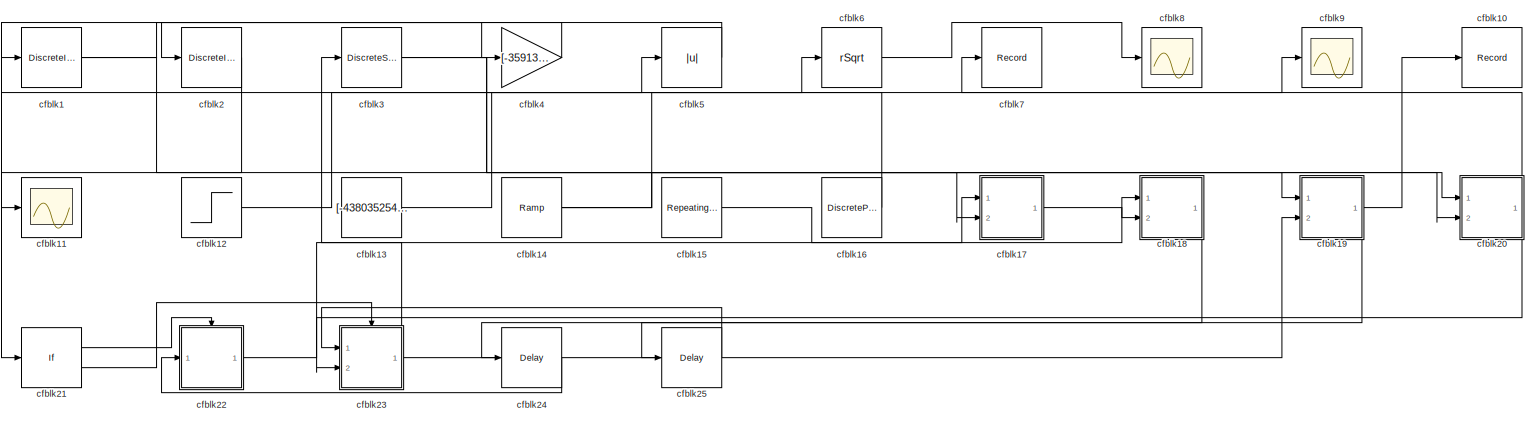
[diagram: root canvas - part 1/1, most of the canvas]
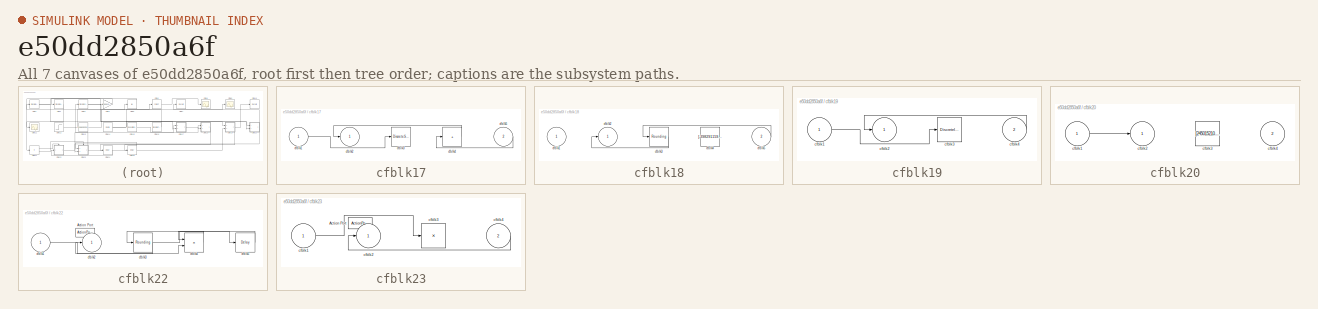
[diagram: thumbnail index - all 7 canvases of the model, root first then tree order]
MODEL slx_e50dd2850a6f
KIND model
CONFIG AbsTol = auto
CONFIG EnableMultiTasking = off
CONFIG FixedStep = auto
CONFIG MaxStep = auto
CONFIG MinStep = auto
CONFIG RelTol = 1e-3
CONFIG SampleTimeConstraint = Unconstrained
CONFIG SolverName = VariableStepAuto
CONFIG StartTime = 0.0
CONFIG StopTime = 10.0
BLOCK [DiscreteIntegrator] cfblk1
  ICPrevOutput = DiscIntNeverNeededParam
  ICPrevScaledInput = DiscIntNeverNeededParam
  InitialConditionSetting = Auto
  Ports = [1, 1]
BLOCK [Record] cfblk10
  FileSettingsInternal = {"entries":[{"content":{"excelSettings":{"content":{},"type":"Streamout.ExcelSettings"}},"type":"Streamout.FileSettingStorage","uuid":"ddcee48c-97f9-4c5e-be8b-3015be74b49a"}],"packageUris":["http://schema.mathworks.com/mf0/streamout_blocks/R2020a"],"version":"1.0"}
  Ports = [1]
  SignalsInternal = {"entries":[{"content":{"signals":[{"content":{"blockPath":["sampleModel209/cfblk10"],"channel":[],"dimensions":[1],"domain":"sampleModel209/cfblk10","lineColor":"#ff13a6","plots":[1],"port":1,"sid":[""],"signalID":8107,"signalName":"cfblk19"},"type":"RecordBlkView.Signal","uuid":"8c198879-0a60-44c0-909a-365ac949948a"}]},"type":"RecordBlkView.InputSignals","uuid":"fa839402-d960-43c3-8ba2-43e0def37...<+97ch>
  VisualizationBindings = {"sparklinesplugin":{"info":[{"bindingParametersList":[],"subplotID":1}]}}
BLOCK [Scope] cfblk11
  Floating = off
  NumInputPorts = 1
  Ports = [1]
BLOCK [Step] cfblk12
  After = [340434112.480645]
  Before = [760172402.159032]
  SampleTime = 0
  Time = [34.000000]
BLOCK [Constant] cfblk13
  SampleTime = 1
  Value = [-438035254.330763]
BLOCK [Reference] cfblk14  REF=simulink/Sources/Ramp
  Ports = [0, 1]
  SourceBlock = simulink/Sources/Ramp
  SourceProductBaseCode = SL
  SourceType = Ramp
BLOCK [Reference] cfblk15  REF=simulink/Sources/Repeating
Sequence
Stair
  Ports = [0, 1]
  SourceBlock = simulink/Sources/Repeating\nSequence\nStair
  SourceProductBaseCode = SL
  SourceType = Repeating Sequence Stair
BLOCK [DiscretePulseGenerator] cfblk16
  Amplitude = [-634459227.469684]
  Period = [3400026.159223]
  PhaseDelay = [1.000000]
  Ports = [0, 1]
  PulseType = Time based
  PulseWidth = 5
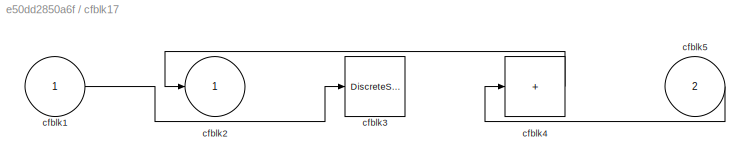
BLOCK [SubSystem] cfblk17
  Ports = [2, 1]
  RequestExecContextInheritance = off
BLOCK [Inport] cfblk17/cfblk1
BLOCK [Outport] cfblk17/cfblk2
BLOCK [DiscreteStateSpace] cfblk17/cfblk3
BLOCK [Sum] cfblk17/cfblk4
  IconShape = rectangular
  Inputs = +
  Ports = [1, 1]
BLOCK [Inport] cfblk17/cfblk5
  Port = 2
BLOCK [SubSystem] cfblk18
  Ports = [2, 1]
  RequestExecContextInheritance = off
BLOCK [Inport] cfblk18/cfblk1
BLOCK [Outport] cfblk18/cfblk2
BLOCK [Rounding] cfblk18/cfblk3
BLOCK [Constant] cfblk18/cfblk4
  SampleTime = 1
  Value = [-398291159.851619]
BLOCK [Inport] cfblk18/cfblk5
  Port = 2
BLOCK [SubSystem] cfblk19
  Ports = [2, 1]
  RequestExecContextInheritance = off
BLOCK [Inport] cfblk19/cfblk1
BLOCK [Outport] cfblk19/cfblk2
BLOCK [DiscreteIntegrator] cfblk19/cfblk3
  ICPrevOutput = DiscIntNeverNeededParam
  ICPrevScaledInput = DiscIntNeverNeededParam
  InitialConditionSetting = Auto
  Ports = [1, 1]
BLOCK [Inport] cfblk19/cfblk4
  Port = 2
BLOCK [DiscreteIntegrator] cfblk2
  ICPrevOutput = DiscIntNeverNeededParam
  ICPrevScaledInput = DiscIntNeverNeededParam
  InitialConditionSetting = Auto
  Ports = [1, 1]
BLOCK [SubSystem] cfblk20
  Ports = [2, 1]
  RequestExecContextInheritance = off
BLOCK [Inport] cfblk20/cfblk1
BLOCK [Outport] cfblk20/cfblk2
BLOCK [Constant] cfblk20/cfblk3
  SampleTime = 1
  Value = [245015210.187344]
BLOCK [Inport] cfblk20/cfblk4
  Port = 2
BLOCK [If] cfblk21
  IfExpression = u1 >= 0
  Ports = [1, 2]
  SampleTime = 1
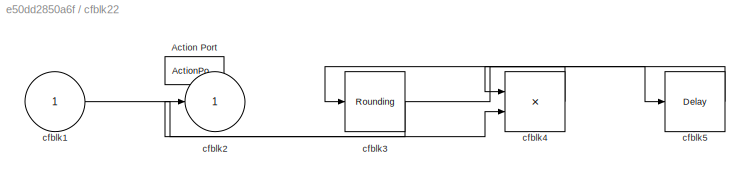
BLOCK [SubSystem] cfblk22
  Ports = [1, 1, 0, 0, 0, 0, 0, 1]
  RequestExecContextInheritance = off
  TreatAsAtomicUnit = on
BLOCK [ActionPort] cfblk22/Action Port
  ActionPortLabel = if(u1 >= 0)
BLOCK [Inport] cfblk22/cfblk1
BLOCK [Outport] cfblk22/cfblk2
BLOCK [Rounding] cfblk22/cfblk3
BLOCK [Product] cfblk22/cfblk4
  Inputs = **
  Ports = [2, 1]
BLOCK [Delay] cfblk22/cfblk5
  InputPortMap = u0
  Ports = [1, 1]
BLOCK [SubSystem] cfblk23
  Ports = [2, 1, 0, 0, 0, 0, 0, 1]
  RequestExecContextInheritance = off
  TreatAsAtomicUnit = on
BLOCK [ActionPort] cfblk23/Action Port
  ActionPortLabel = else
BLOCK [Inport] cfblk23/cfblk1
BLOCK [Outport] cfblk23/cfblk2
BLOCK [Product] cfblk23/cfblk3
  Inputs = *
  Ports = [1, 1]
BLOCK [Inport] cfblk23/cfblk4
  Port = 2
BLOCK [Delay] cfblk24
  InputPortMap = u0
  Ports = [1, 1]
  SampleTime = 1
BLOCK [Delay] cfblk25
  InputPortMap = u0
  Ports = [1, 1]
  SampleTime = 1
BLOCK [DiscreteStateSpace] cfblk3
BLOCK [Gain] cfblk4
  Gain = [-359139366.923474]
BLOCK [Abs] cfblk5
  SaturateOnIntegerOverflow = off
BLOCK [Sqrt] cfblk6
  AlgorithmType = Newton-Raphson
  Operator = rSqrt
BLOCK [Record] cfblk7
  FileSettingsInternal = {"entries":[{"content":{"excelSettings":{"content":{},"type":"Streamout.ExcelSettings"}},"type":"Streamout.FileSettingStorage","uuid":"78a27359-255d-4437-ae35-127f47ed64b3"}],"packageUris":["http://schema.mathworks.com/mf0/streamout_blocks/R2020a"],"version":"1.0"}
  Ports = [1]
  SignalsInternal = {"entries":[{"content":{"signals":[{"content":{"blockPath":["sampleModel209/cfblk7"],"channel":[],"dimensions":[1],"domain":"sampleModel209/cfblk7","lineColor":"#fe330a","plots":[1],"port":1,"sid":[""],"signalID":8111,"signalName":"cfblk20"},"type":"RecordBlkView.Signal","uuid":"cc093a5e-f450-4358-995f-cba163aa30d8"}]},"type":"RecordBlkView.InputSignals","uuid":"e5813685-5132-4ee3-bc5a-e7e5b18a0bc...<+95ch>
  VisualizationBindings = {"sparklinesplugin":{"info":[{"bindingParametersList":[],"subplotID":1}]}}
BLOCK [Scope] cfblk8
  Floating = off
  NumInputPorts = 1
  Ports = [1]
BLOCK [Scope] cfblk9
  Floating = off
  NumInputPorts = 1
  Ports = [1]
LINE cfblk12:1 -> cfblk9:1
LINE cfblk13:1 -> cfblk5:1
NET cfblk14:1 -> cfblk20:1, cfblk6:1
LINE cfblk15:1 -> cfblk18:1
LINE cfblk16:1 -> cfblk1:1
LINE cfblk17/cfblk1:1 -> cfblk17/cfblk3:1
LINE cfblk17/cfblk4:1 -> cfblk17/cfblk2:1
LINE cfblk17/cfblk5:1 -> cfblk17/cfblk4:1
LINE cfblk17:1 -> cfblk18:2
LINE cfblk18/cfblk3:1 -> cfblk18/cfblk2:1
LINE cfblk18/cfblk5:1 -> cfblk18/cfblk3:1
LINE cfblk18:1 -> cfblk25:1
LINE cfblk19/cfblk1:1 -> cfblk19/cfblk3:1
LINE cfblk19/cfblk4:1 -> cfblk19/cfblk2:1
NET cfblk19:1 -> cfblk10:1, cfblk24:1
NET cfblk1:1 -> cfblk20:2, cfblk4:1
LINE cfblk20/cfblk1:1 -> cfblk20/cfblk2:1
NET cfblk20:1 -> cfblk23:2, cfblk7:1
LINE cfblk21:1 -> cfblk22:ifaction
LINE cfblk21:2 -> cfblk23:ifaction
LINE cfblk22/cfblk1:1 -> cfblk22/cfblk4:2
NET cfblk22/cfblk3:1 -> cfblk22/cfblk2:1, cfblk22/cfblk5:1
LINE cfblk22/cfblk4:1 -> cfblk22/cfblk3:1
LINE cfblk22/cfblk5:1 -> cfblk22/cfblk4:1
LINE cfblk22:1 -> cfblk17:1
LINE cfblk23/cfblk1:1 -> cfblk23/cfblk3:1
LINE cfblk23/cfblk4:1 -> cfblk23/cfblk2:1
NET cfblk23:1 -> cfblk19:2, cfblk3:1
LINE cfblk24:1 -> cfblk22:1
LINE cfblk25:1 -> cfblk23:1
LINE cfblk2:1 -> cfblk11:1
NET cfblk3:1 -> cfblk17:2, cfblk19:1
LINE cfblk4:1 -> cfblk2:1
LINE cfblk5:1 -> cfblk21:1
LINE cfblk6:1 -> cfblk8:1
note: NET lines group one-source signal fan-out (src -> all destinations, sorted); 1:1 wires keep LINE
